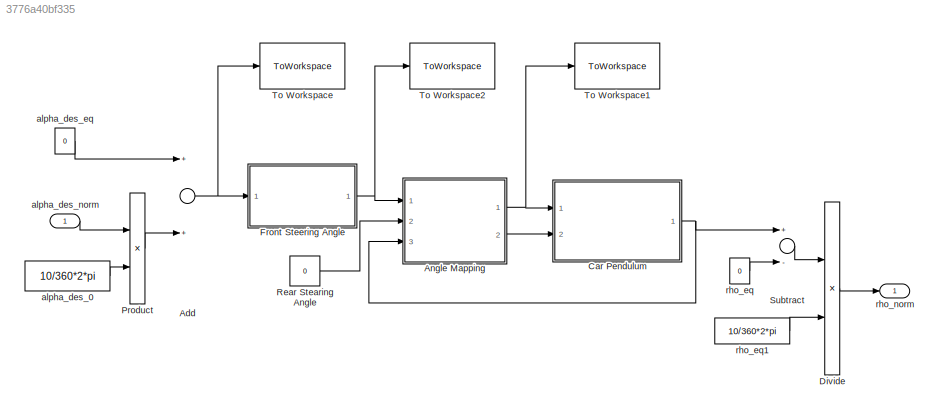
MODEL slx_3776a40bf335
KIND model
BLOCK [Sum] Add
  InputSameDT = off
  OutDataTypeStr = Inherit: Inherit via internal rule
  Ports = [2, 1]
  SaturateOnIntegerOverflow = off
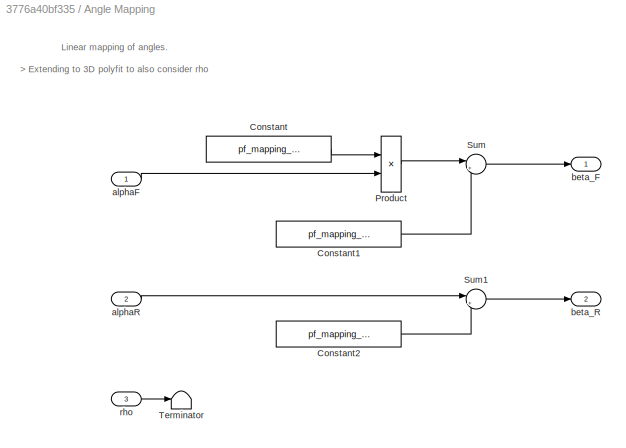
BLOCK [SubSystem] Angle Mapping
  FunctionWithSeparateData = off
  MaskHideContents = off
  MinAlgLoopOccurrences = off
  Opaque = off
  Ports = [3, 2]
  PropExecContextOutsideSubsystem = off
  RTWSystemCode = Auto
  RequestExecContextInheritance = off
BLOCK [Constant] Angle Mapping/Constant
  Value = pf_mapping_1st_FR(1)
BLOCK [Constant] Angle Mapping/Constant1
  Value = pf_mapping_1st_FR(2)
BLOCK [Constant] Angle Mapping/Constant2
  Value = pf_mapping_1st_RR(1)
BLOCK [Product] Angle Mapping/Product
  InputSameDT = off
  OutDataTypeStr = Inherit: Inherit via internal rule
  Ports = [2, 1]
  RndMeth = Floor
  SaturateOnIntegerOverflow = off
BLOCK [Sum] Angle Mapping/Sum
  IconShape = round
  InputSameDT = off
  Inputs = |++
  OutDataTypeStr = Inherit: Inherit via internal rule
  Ports = [2, 1]
  SaturateOnIntegerOverflow = off
BLOCK [Sum] Angle Mapping/Sum1
  IconShape = round
  InputSameDT = off
  Inputs = |++
  OutDataTypeStr = Inherit: Inherit via internal rule
  Ports = [2, 1]
  SaturateOnIntegerOverflow = off
BLOCK [Terminator] Angle Mapping/Terminator
BLOCK [Inport] Angle Mapping/alphaF
  IconDisplay = Port number
BLOCK [Inport] Angle Mapping/alphaR
  IconDisplay = Port number
  Port = 2
BLOCK [Outport] Angle Mapping/beta_F
  IconDisplay = Port number
BLOCK [Outport] Angle Mapping/beta_R
  IconDisplay = Port number
  Port = 2
BLOCK [Inport] Angle Mapping/rho
  IconDisplay = Port number
  Port = 3
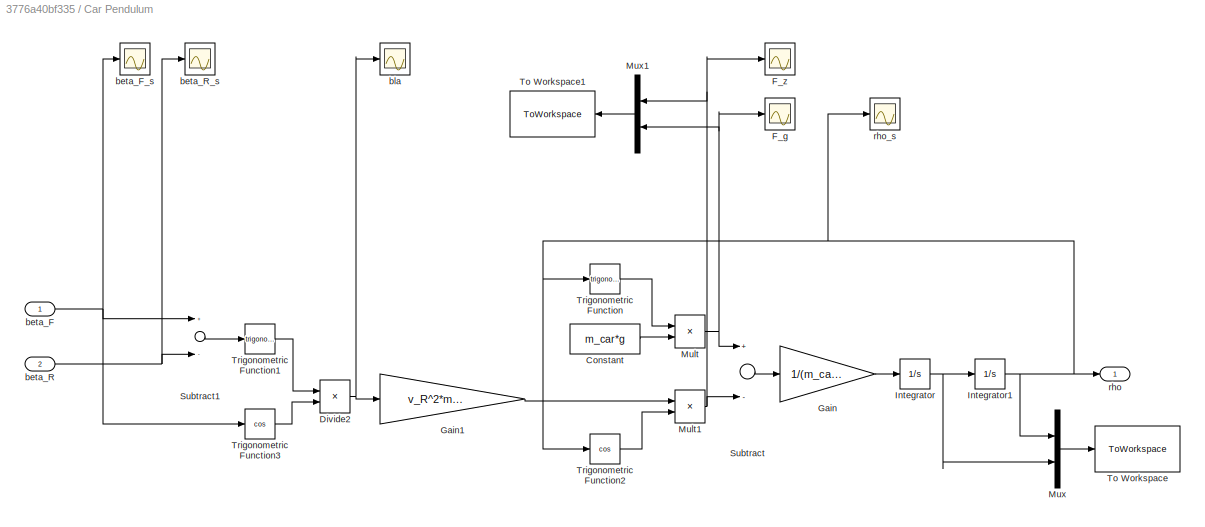
BLOCK [SubSystem] Car Pendulum
  FunctionWithSeparateData = off
  MaskHideContents = off
  MinAlgLoopOccurrences = off
  Opaque = off
  Ports = [2, 1]
  PropExecContextOutsideSubsystem = off
  RTWSystemCode = Auto
  RequestExecContextInheritance = off
BLOCK [Constant] Car Pendulum/Constant
  Value = m_car*g
BLOCK [Product] Car Pendulum/Divide2
  InputSameDT = off
  Inputs = */
  OutDataTypeStr = Inherit: Inherit via internal rule
  Ports = [2, 1]
  RndMeth = Floor
  SaturateOnIntegerOverflow = off
BLOCK [Scope] Car Pendulum/F_g
  DataFormat = StructureWithTime
  Floating = off
  LimitDataPoints = off
  NumInputPorts = 1
  Ports = [1]
  SampleTime = 0
  SaveName = ScopeData2
  ShowLegends = off
BLOCK [Scope] Car Pendulum/F_z
  DataFormat = StructureWithTime
  Floating = off
  LimitDataPoints = off
  NumInputPorts = 1
  Ports = [1]
  SampleTime = 0
  SaveName = ScopeData1
  ShowLegends = off
BLOCK [Gain] Car Pendulum/Gain
  Gain = 1/(m_car*l_p)
  OutDataTypeStr = Inherit: Inherit via internal rule
  ParamDataTypeStr = Inherit: Inherit via internal rule
  SaturateOnIntegerOverflow = off
BLOCK [Gain] Car Pendulum/Gain1
  Gain = v_R^2*m_car/l_w
  OutDataTypeStr = Inherit: Inherit via internal rule
  ParamDataTypeStr = Inherit: Inherit via internal rule
  SaturateOnIntegerOverflow = off
BLOCK [Integrator] Car Pendulum/Integrator
  ContinuousStateAttributes = 'rho_dot'
  Ports = [1, 1]
BLOCK [Integrator] Car Pendulum/Integrator1
  ContinuousStateAttributes = 'rho'
  InitialCondition = 2/360*2*pi*0
  Ports = [1, 1]
BLOCK [Product] Car Pendulum/Mult
  InputSameDT = off
  Inputs = **
  OutDataTypeStr = Inherit: Inherit via internal rule
  Ports = [2, 1]
  RndMeth = Floor
  SaturateOnIntegerOverflow = off
BLOCK [Product] Car Pendulum/Mult1
  InputSameDT = off
  Inputs = **
  OutDataTypeStr = Inherit: Inherit via internal rule
  Ports = [2, 1]
  RndMeth = Floor
  SaturateOnIntegerOverflow = off
BLOCK [Mux] Car Pendulum/Mux
  DisplayOption = bar
  Inputs = 2
  Ports = [2, 1]
BLOCK [Mux] Car Pendulum/Mux1
  DisplayOption = bar
  Inputs = 2
  Ports = [2, 1]
BLOCK [Sum] Car Pendulum/Subtract
  InputSameDT = off
  Inputs = +-
  OutDataTypeStr = Inherit: Inherit via internal rule
  Ports = [2, 1]
  SaturateOnIntegerOverflow = off
BLOCK [Sum] Car Pendulum/Subtract1
  InputSameDT = off
  Inputs = +-
  OutDataTypeStr = Inherit: Inherit via internal rule
  Ports = [2, 1]
  SaturateOnIntegerOverflow = off
BLOCK [ToWorkspace] Car Pendulum/To Workspace
  MaxDataPoints = inf
  Ports = [1]
  SampleTime = -1
  SaveFormat = Timeseries
  VariableName = rho
BLOCK [ToWorkspace] Car Pendulum/To Workspace1
  MaxDataPoints = inf
  Ports = [1]
  SampleTime = -1
  SaveFormat = Timeseries
  VariableName = forces
BLOCK [Trigonometry] Car Pendulum/Trigonometric Function
  Ports = [1, 1]
BLOCK [Trigonometry] Car Pendulum/Trigonometric Function1
  Ports = [1, 1]
BLOCK [Trigonometry] Car Pendulum/Trigonometric Function2
  Operator = cos
  Ports = [1, 1]
BLOCK [Trigonometry] Car Pendulum/Trigonometric Function3
  Operator = cos
  Ports = [1, 1]
BLOCK [Inport] Car Pendulum/beta_F
  IconDisplay = Port number
BLOCK [Scope] Car Pendulum/beta_F_s
  DataFormat = StructureWithTime
  Floating = off
  NumInputPorts = 1
  Ports = [1]
  SampleTime = 0
  SaveName = ScopeData7
  ShowLegends = off
BLOCK [Inport] Car Pendulum/beta_R
  IconDisplay = Port number
  Port = 2
BLOCK [Scope] Car Pendulum/beta_R_s 
  DataFormat = StructureWithTime
  Floating = off
  NumInputPorts = 1
  Ports = [1]
  SampleTime = 0
  SaveName = ScopeData9
  ShowLegends = off
BLOCK [Scope] Car Pendulum/bla
  DataFormat = StructureWithTime
  Floating = off
  NumInputPorts = 1
  Ports = [1]
  SampleTime = 0
  SaveName = ScopeData10
  ShowLegends = off
BLOCK [Outport] Car Pendulum/rho
  IconDisplay = Port number
BLOCK [Scope] Car Pendulum/rho_s
  DataFormat = StructureWithTime
  Floating = off
  NumInputPorts = 1
  Ports = [1]
  SampleTime = 0
  SaveName = ScopeData3
  ShowLegends = off
BLOCK [Product] Divide
  InputSameDT = off
  Inputs = */
  OutDataTypeStr = Inherit: Inherit via internal rule
  Ports = [2, 1]
  RndMeth = Floor
  SaturateOnIntegerOverflow = off
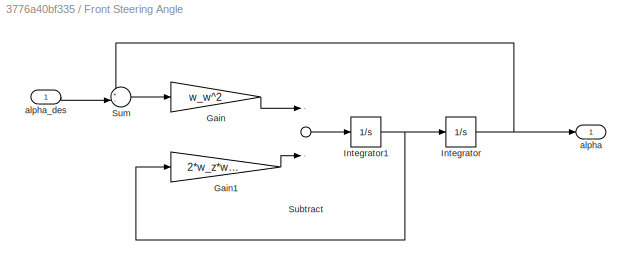
BLOCK [SubSystem] Front Steering Angle
  FunctionWithSeparateData = off
  MaskHideContents = off
  MinAlgLoopOccurrences = off
  Opaque = off
  Ports = [1, 1]
  PropExecContextOutsideSubsystem = off
  RTWSystemCode = Auto
  RequestExecContextInheritance = off
BLOCK [Gain] Front Steering Angle/Gain
  Gain = w_w^2
  OutDataTypeStr = Inherit: Inherit via internal rule
  ParamDataTypeStr = Inherit: Inherit via internal rule
  SaturateOnIntegerOverflow = off
BLOCK [Gain] Front Steering Angle/Gain1
  Gain = 2*w_z*w_w
  OutDataTypeStr = Inherit: Inherit via internal rule
  ParamDataTypeStr = Inherit: Inherit via internal rule
  SaturateOnIntegerOverflow = off
BLOCK [Integrator] Front Steering Angle/Integrator
  Ports = [1, 1]
BLOCK [Integrator] Front Steering Angle/Integrator1
  Ports = [1, 1]
BLOCK [Sum] Front Steering Angle/Subtract
  InputSameDT = off
  Inputs = --
  OutDataTypeStr = Inherit: Inherit via internal rule
  Ports = [2, 1]
  SaturateOnIntegerOverflow = off
BLOCK [Sum] Front Steering Angle/Sum
  IconShape = round
  InputSameDT = off
  Inputs = +-|
  OutDataTypeStr = Inherit: Inherit via internal rule
  Ports = [2, 1]
  SaturateOnIntegerOverflow = off
BLOCK [Outport] Front Steering Angle/alpha
  IconDisplay = Port number
BLOCK [Inport] Front Steering Angle/alpha_des
  IconDisplay = Port number
BLOCK [Product] Product
  InputSameDT = off
  OutDataTypeStr = Inherit: Inherit via internal rule
  Ports = [2, 1]
  RndMeth = Floor
  SaturateOnIntegerOverflow = off
BLOCK [Constant] Rear Stearing Angle
  Value = 0
BLOCK [Sum] Subtract
  InputSameDT = off
  Inputs = +-
  OutDataTypeStr = Inherit: Inherit via internal rule
  Ports = [2, 1]
  SaturateOnIntegerOverflow = off
BLOCK [ToWorkspace] To Workspace
  MaxDataPoints = inf
  Ports = [1]
  SampleTime = -1
  SaveFormat = Timeseries
  VariableName = alpha_des
BLOCK [ToWorkspace] To Workspace1
  MaxDataPoints = inf
  Ports = [1]
  SampleTime = -1
  SaveFormat = Timeseries
  VariableName = beta_F
BLOCK [ToWorkspace] To Workspace2
  MaxDataPoints = inf
  Ports = [1]
  SampleTime = -1
  SaveFormat = Timeseries
  VariableName = alpha
BLOCK [Constant] alpha_des_0
  Value = 10/360*2*pi
BLOCK [Constant] alpha_des_eq
  Value = 0
BLOCK [Inport] alpha_des_norm
  IconDisplay = Port number
BLOCK [Constant] rho_eq
  Value = 0
BLOCK [Constant] rho_eq1
  Value = 10/360*2*pi
BLOCK [Outport] rho_norm
  IconDisplay = Port number
ANNOTATION Angle Mapping: Linear mapping of angles. > Extending to 3D polyfit to also consider rho
NET Add:1 -> Front Steering Angle:1, To Workspace:1
LINE Angle Mapping/Constant1:1 -> Angle Mapping/Sum:2
LINE Angle Mapping/Constant2:1 -> Angle Mapping/Sum1:2
LINE Angle Mapping/Constant:1 -> Angle Mapping/Product:1
LINE Angle Mapping/Product:1 -> Angle Mapping/Sum:1
LINE Angle Mapping/Sum1:1 -> Angle Mapping/beta_R:1
LINE Angle Mapping/Sum:1 -> Angle Mapping/beta_F:1
LINE Angle Mapping/alphaF:1 -> Angle Mapping/Product:2
LINE Angle Mapping/alphaR:1 -> Angle Mapping/Sum1:1
LINE Angle Mapping/rho:1 -> Angle Mapping/Terminator:1
NET Angle Mapping:1 -> Car Pendulum:1, To Workspace1:1
LINE Angle Mapping:2 -> Car Pendulum:2
LINE Car Pendulum/Constant:1 -> Car Pendulum/Mult:2
NET Car Pendulum/Divide2:1 -> Car Pendulum/Gain1:1, Car Pendulum/bla:1
LINE Car Pendulum/Gain1:1 -> Car Pendulum/Mult1:1
LINE Car Pendulum/Gain:1 -> Car Pendulum/Integrator:1
NET Car Pendulum/Integrator1:1 -> Car Pendulum/Mux:1, Car Pendulum/Trigonometric Function2:1, Car Pendulum/Trigonometric Function:1, Car Pendulum/rho:1, Car Pendulum/rho_s:1
NET Car Pendulum/Integrator:1 -> Car Pendulum/Integrator1:1, Car Pendulum/Mux:2
NET Car Pendulum/Mult1:1 -> Car Pendulum/F_z:1, Car Pendulum/Mux1:1, Car Pendulum/Subtract:2
NET Car Pendulum/Mult:1 -> Car Pendulum/F_g:1, Car Pendulum/Mux1:2, Car Pendulum/Subtract:1
LINE Car Pendulum/Mux1:1 -> Car Pendulum/To Workspace1:1
LINE Car Pendulum/Mux:1 -> Car Pendulum/To Workspace:1
LINE Car Pendulum/Subtract1:1 -> Car Pendulum/Trigonometric Function1:1
LINE Car Pendulum/Subtract:1 -> Car Pendulum/Gain:1
LINE Car Pendulum/Trigonometric Function1:1 -> Car Pendulum/Divide2:1
LINE Car Pendulum/Trigonometric Function2:1 -> Car Pendulum/Mult1:2
LINE Car Pendulum/Trigonometric Function3:1 -> Car Pendulum/Divide2:2
LINE Car Pendulum/Trigonometric Function:1 -> Car Pendulum/Mult:1
NET Car Pendulum/beta_F:1 -> Car Pendulum/Subtract1:1, Car Pendulum/Trigonometric Function3:1, Car Pendulum/beta_F_s:1
NET Car Pendulum/beta_R:1 -> Car Pendulum/Subtract1:2, Car Pendulum/beta_R_s :1
NET Car Pendulum:1 -> Angle Mapping:3, Subtract:1
LINE Divide:1 -> rho_norm:1
LINE Front Steering Angle/Gain1:1 -> Front Steering Angle/Subtract:2
LINE Front Steering Angle/Gain:1 -> Front Steering Angle/Subtract:1
NET Front Steering Angle/Integrator1:1 -> Front Steering Angle/Gain1:1, Front Steering Angle/Integrator:1
NET Front Steering Angle/Integrator:1 -> Front Steering Angle/Sum:1, Front Steering Angle/alpha:1
LINE Front Steering Angle/Subtract:1 -> Front Steering Angle/Integrator1:1
LINE Front Steering Angle/Sum:1 -> Front Steering Angle/Gain:1
LINE Front Steering Angle/alpha_des:1 -> Front Steering Angle/Sum:2
NET Front Steering Angle:1 -> Angle Mapping:1, To Workspace2:1
LINE Product:1 -> Add:2
LINE Rear Stearing Angle:1 -> Angle Mapping:2
LINE Subtract:1 -> Divide:1
LINE alpha_des_0:1 -> Product:2
LINE alpha_des_eq:1 -> Add:1
LINE alpha_des_norm:1 -> Product:1
LINE rho_eq1:1 -> Divide:2
LINE rho_eq:1 -> Subtract:2
note: NET lines group one-source signal fan-out (src -> all destinations, sorted); 1:1 wires keep LINE
